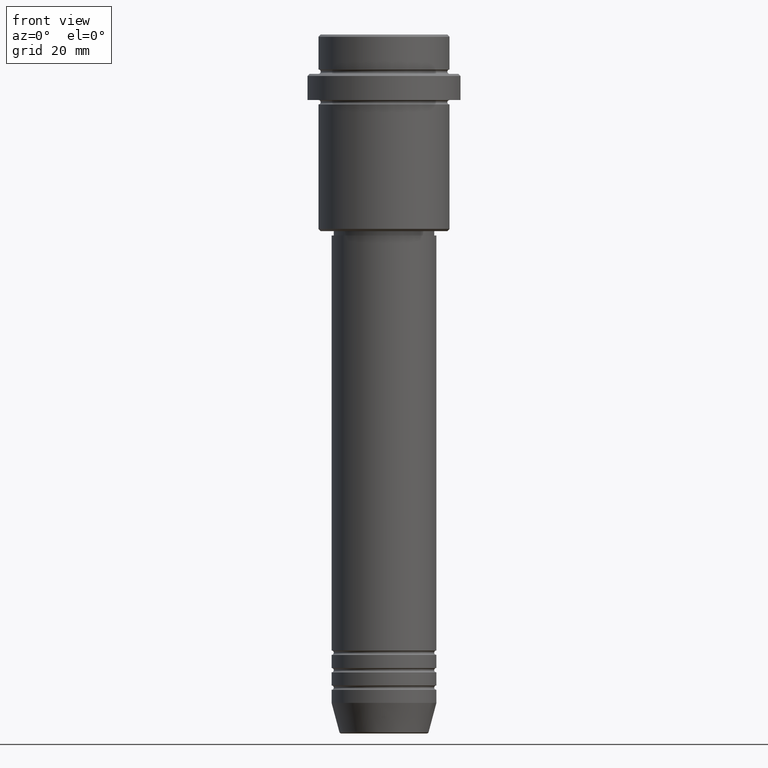
[diagram: clean part render]
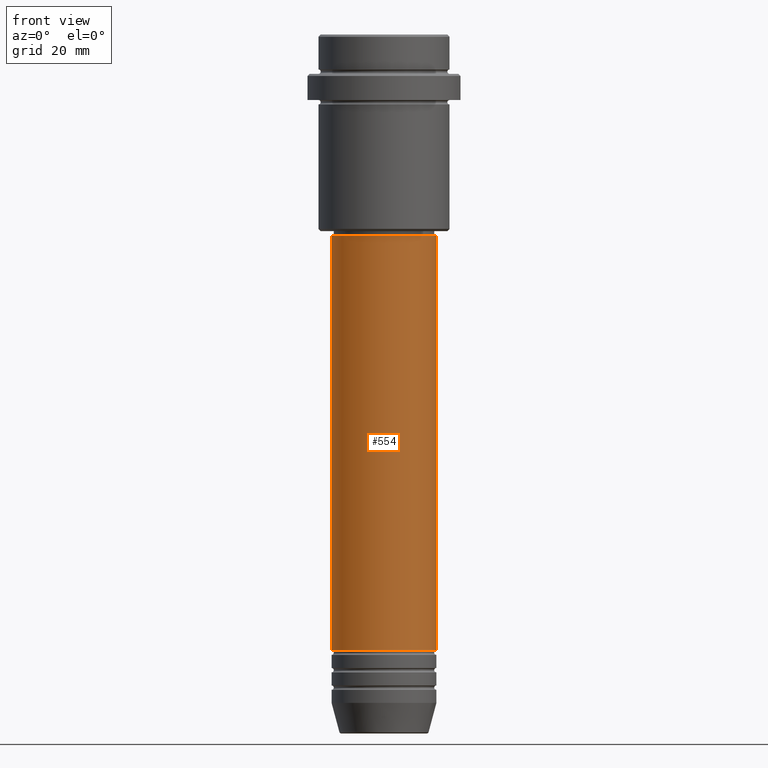
[diagram: same view with one face highlighted and labeled with its STEP entity id]
A machine part, front view. The second image highlights one B-rep face of the part: STEP entity #554.
In plain terms, the highlighted cylindrical surface (partial cylindrical patch) has radius 12 mm, axis along (-0, -0, 1).
Its self-contained STEP definition (entity closure, byte-faithful):
#40 = CARTESIAN_POINT ( 'NONE',  ( -12.00000000000000000, 1.469576158976823947E-15, -140.9999999999999147 ) ) ;
#43 = EDGE_LOOP ( 'NONE', ( #1018, #897, #530, #328 ) ) ;
#59 = CIRCLE ( 'NONE', #1252, 11.99999999999999822 ) ;
#109 = DIRECTION ( 'NONE',  ( 1.000000000000000000, 0.000000000000000000, 0.000000000000000000 ) ) ;
#202 = VERTEX_POINT ( 'NONE', #455 ) ;
#224 = DIRECTION ( 'NONE',  ( -0.000000000000000000, -0.000000000000000000, 1.000000000000000000 ) ) ;
#298 = VERTEX_POINT ( 'NONE', #394 ) ;
#307 = CIRCLE ( 'NONE', #1000, 12.00000000000000000 ) ;
#328 = ORIENTED_EDGE ( 'NONE', *, *, #1403, .F. ) ;
#347 = LINE ( 'NONE', #791, #471 ) ;
#362 = DIRECTION ( 'NONE',  ( -0.000000000000000000, -0.000000000000000000, 1.000000000000000000 ) ) ;
#374 = VECTOR ( 'NONE', #362, 1000.000000000000000 ) ;
#383 = CARTESIAN_POINT ( 'NONE',  ( 12.00000000000000000, 0.000000000000000000, 0.000000000000000000 ) ) ;
#394 = CARTESIAN_POINT ( 'NONE',  ( 12.00000000000000000, 0.000000000000000000, -140.9999999999999147 ) ) ;
#452 = CARTESIAN_POINT ( 'NONE',  ( 0.000000000000000000, 0.000000000000000000, -140.9999999999999147 ) ) ;
#455 = CARTESIAN_POINT ( 'NONE',  ( 11.99999999999999822, 0.000000000000000000, -45.99999999999998579 ) ) ;
#471 = VECTOR ( 'NONE', #224, 1000.000000000000000 ) ;
#479 = CYLINDRICAL_SURFACE ( 'NONE', #982, 12.00000000000000000 ) ;
#530 = ORIENTED_EDGE ( 'NONE', *, *, #1082, .T. ) ;
#543 = VERTEX_POINT ( 'NONE', #40 ) ;
#554 = ADVANCED_FACE ( 'NONE', ( #705 ), #479, .T. ) ;
#576 = VERTEX_POINT ( 'NONE', #1415 ) ;
#705 = FACE_OUTER_BOUND ( 'NONE', #43, .T. ) ;
#791 = CARTESIAN_POINT ( 'NONE',  ( -12.00000000000000000, 1.469576158976823947E-15, 0.000000000000000000 ) ) ;
#827 = EDGE_CURVE ( 'NONE', #543, #298, #307, .T. ) ;
#879 = DIRECTION ( 'NONE',  ( -0.000000000000000000, -0.000000000000000000, 1.000000000000000000 ) ) ;
#897 = ORIENTED_EDGE ( 'NONE', *, *, #827, .T. ) ;
#944 = EDGE_CURVE ( 'NONE', #543, #576, #347, .T. ) ;
#982 = AXIS2_PLACEMENT_3D ( 'NONE', #1184, #1047, #1379 ) ;
#1000 = AXIS2_PLACEMENT_3D ( 'NONE', #452, #879, #1098 ) ;
#1008 = DIRECTION ( 'NONE',  ( -0.000000000000000000, -0.000000000000000000, 1.000000000000000000 ) ) ;
#1018 = ORIENTED_EDGE ( 'NONE', *, *, #944, .F. ) ;
#1047 = DIRECTION ( 'NONE',  ( -0.000000000000000000, -0.000000000000000000, 1.000000000000000000 ) ) ;
#1082 = EDGE_CURVE ( 'NONE', #298, #202, #1236, .T. ) ;
#1098 = DIRECTION ( 'NONE',  ( 1.000000000000000000, 0.000000000000000000, 0.000000000000000000 ) ) ;
#1115 = CARTESIAN_POINT ( 'NONE',  ( 0.000000000000000000, 0.000000000000000000, -45.99999999999998579 ) ) ;
#1184 = CARTESIAN_POINT ( 'NONE',  ( 0.000000000000000000, 0.000000000000000000, 0.000000000000000000 ) ) ;
#1236 = LINE ( 'NONE', #383, #374 ) ;
#1252 = AXIS2_PLACEMENT_3D ( 'NONE', #1115, #1008, #109 ) ;
#1379 = DIRECTION ( 'NONE',  ( 1.000000000000000000, 0.000000000000000000, 0.000000000000000000 ) ) ;
#1403 = EDGE_CURVE ( 'NONE', #576, #202, #59, .T. ) ;
#1415 = CARTESIAN_POINT ( 'NONE',  ( -11.99999999999999822, 1.469576158976823750E-15, -45.99999999999998579 ) ) ;